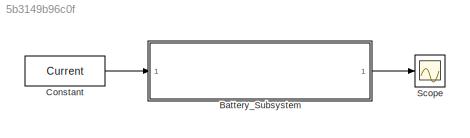
MODEL slx_5b3149b96c0f
KIND model
CONFIG AbsTol = auto
CONFIG EnableMultiTasking = off
CONFIG FixedStep = auto
CONFIG InitFcn = Current =2; %A\nInternal_Resistance =95*10^-3; %ohm\ncapacity =19.5 ; %Ah\nSOC_initial = 100;\nPolarization_Resistance = 95*10^-3;\nPolarization_Capacitance = 1*10^-7;\n
CONFIG MaxStep = 0.01
CONFIG MinStep = auto
CONFIG RelTol = 1e-3
CONFIG SampleTimeConstraint = Unconstrained
CONFIG Solver = VariableStepAuto
CONFIG SolverName = VariableStepAuto
CONFIG StartTime = 0.0
CONFIG StopTime = 54000
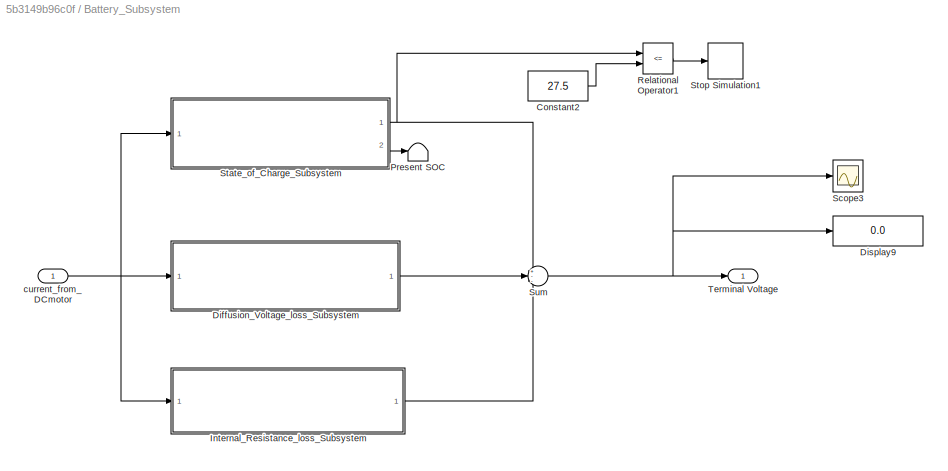
BLOCK [SubSystem] Battery_Subsystem
  Ports = [1, 1]
  RequestExecContextInheritance = off
BLOCK [Constant] Battery_Subsystem/Constant2
  Value = 27.5
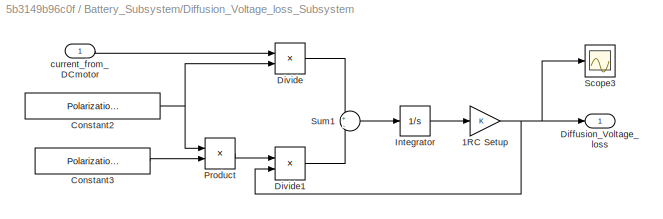
BLOCK [SubSystem] Battery_Subsystem/Diffusion_Voltage_loss_Subsystem
  Ports = [1, 1]
  RequestExecContextInheritance = off
BLOCK [Gain] Battery_Subsystem/Diffusion_Voltage_loss_Subsystem/1RC Setup
  OutDataTypeStr = Inherit: Inherit via internal rule
  ParamDataTypeStr = Inherit: Inherit via internal rule
  SaturateOnIntegerOverflow = off
BLOCK [Constant] Battery_Subsystem/Diffusion_Voltage_loss_Subsystem/Constant2
  SampleTime = -1
  Value = Polarization_Capacitance
BLOCK [Constant] Battery_Subsystem/Diffusion_Voltage_loss_Subsystem/Constant3
  SampleTime = -1
  Value = Polarization_Resistance
BLOCK [Outport] Battery_Subsystem/Diffusion_Voltage_loss_Subsystem/Diffusion_Voltage_loss
  IconDisplay = Port number
  VectorParamsAs1DForOutWhenUnconnected = off
BLOCK [Product] Battery_Subsystem/Diffusion_Voltage_loss_Subsystem/Divide
  InputSameDT = off
  Inputs = */
  OutDataTypeStr = Inherit: Inherit via internal rule
  Ports = [2, 1]
  RndMeth = Floor
  SaturateOnIntegerOverflow = off
BLOCK [Product] Battery_Subsystem/Diffusion_Voltage_loss_Subsystem/Divide1
  InputSameDT = off
  Inputs = /*
  OutDataTypeStr = Inherit: Inherit via internal rule
  Ports = [2, 1]
  RndMeth = Floor
  SaturateOnIntegerOverflow = off
BLOCK [Integrator] Battery_Subsystem/Diffusion_Voltage_loss_Subsystem/Integrator
  Ports = [1, 1]
BLOCK [Product] Battery_Subsystem/Diffusion_Voltage_loss_Subsystem/Product
  InputSameDT = off
  OutDataTypeStr = Inherit: Inherit via internal rule
  Ports = [2, 1]
  RndMeth = Floor
  SaturateOnIntegerOverflow = off
BLOCK [Scope] Battery_Subsystem/Diffusion_Voltage_loss_Subsystem/Scope3
  Floating = off
  NumInputPorts = 1
  Ports = [1]
  ScopeSpecificationString = Simulink.scopes.TimeScopeBlockCfg('CurrentConfiguration', extmgr.ConfigurationSet(extmgr.Configuration('Core','General UI',true),extmgr.Configuration('Core','Source UI',true),extmgr.Configuration('Sources','WiredSimulink',true,'DataLoggingVariableName','ScopeData4'),extmgr.Configuration('Visuals','Time Domain',true,'SerializedDisplays',{struct('MinYLimReal','-0.02375','MaxYLimReal','0.21376','YLab...<+1480ch>
BLOCK [Sum] Battery_Subsystem/Diffusion_Voltage_loss_Subsystem/Sum1
  IconShape = round
  InputSameDT = off
  Inputs = +|-
  OutDataTypeStr = Inherit: Inherit via internal rule
  Ports = [2, 1]
  SaturateOnIntegerOverflow = off
BLOCK [Inport] Battery_Subsystem/Diffusion_Voltage_loss_Subsystem/current_from_DCmotor
  IconDisplay = Port number
BLOCK [Display] Battery_Subsystem/Display9
  Decimation = 1
  Ports = [1]
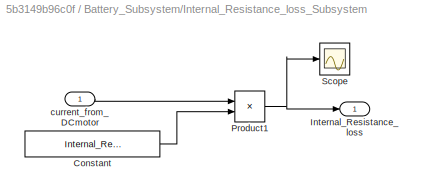
BLOCK [SubSystem] Battery_Subsystem/Internal_Resistance_loss_Subsystem
  Ports = [1, 1]
  RequestExecContextInheritance = off
BLOCK [Constant] Battery_Subsystem/Internal_Resistance_loss_Subsystem/Constant
  SampleTime = -1
  Value = Internal_Resistance
BLOCK [Outport] Battery_Subsystem/Internal_Resistance_loss_Subsystem/Internal_Resistance_loss
  IconDisplay = Port number
  VectorParamsAs1DForOutWhenUnconnected = off
BLOCK [Product] Battery_Subsystem/Internal_Resistance_loss_Subsystem/Product1
  InputSameDT = off
  OutDataTypeStr = Inherit: Inherit via internal rule
  Ports = [2, 1]
  RndMeth = Floor
  SaturateOnIntegerOverflow = off
BLOCK [Scope] Battery_Subsystem/Internal_Resistance_loss_Subsystem/Scope
  Floating = off
  NumInputPorts = 1
  Ports = [1]
  ScopeSpecificationString = Simulink.scopes.TimeScopeBlockCfg('CurrentConfiguration', extmgr.ConfigurationSet(extmgr.Configuration('Core','General UI',true),extmgr.Configuration('Core','Source UI',true),extmgr.Configuration('Sources','WiredSimulink',true,'DataLoggingVariableName','ScopeData2'),extmgr.Configuration('Visuals','Time Domain',true,'SerializedDisplays',{struct('MinYLimReal','0.09','MaxYLimReal','0.29','YLabelReal'...<+1414ch>
BLOCK [Inport] Battery_Subsystem/Internal_Resistance_loss_Subsystem/current_from_DCmotor
  IconDisplay = Port number
BLOCK [Terminator] Battery_Subsystem/Present SOC
BLOCK [RelationalOperator] Battery_Subsystem/Relational Operator1
  InputSameDT = off
  Operator = <=
  OutDataTypeStr = boolean
  Ports = [2, 1]
  RndMeth = Simplest
BLOCK [Scope] Battery_Subsystem/Scope3
  Floating = off
  NumInputPorts = 1
  Ports = [1]
  ScopeSpecificationString = Simulink.scopes.TimeScopeBlockCfg('CurrentConfiguration', extmgr.ConfigurationSet(extmgr.Configuration('Core','General UI',true),extmgr.Configuration('Core','Source UI',true),extmgr.Configuration('Sources','WiredSimulink',true,'DataLoggingVariableName','ScopeData6'),extmgr.Configuration('Visuals','Time Domain',true,'SerializedDisplays',{struct('MinYLimReal','25.37125','MaxYLimReal','42.85875','YLa...<+1503ch>
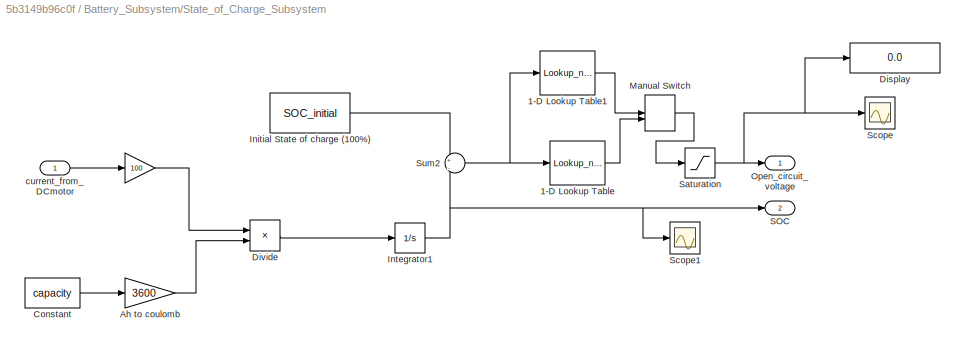
BLOCK [SubSystem] Battery_Subsystem/State_of_Charge_Subsystem 
  Ports = [1, 2]
  RequestExecContextInheritance = off
BLOCK [Gain] Battery_Subsystem/State_of_Charge_Subsystem / 
  Gain = 100
  OutDataTypeStr = Inherit: Inherit via internal rule
  ParamDataTypeStr = Inherit: Inherit via internal rule
  SaturateOnIntegerOverflow = off
BLOCK [Lookup_n-D] Battery_Subsystem/State_of_Charge_Subsystem /1-D Lookup Table
  BreakpointsForDimension1 = [10 12 15 20 30 45 60 75 85 95 100]
  InternalRulePriority = Speed
  NumberOfTableDimensions = 1
  Ports = [1, 1]
  RndMeth = Simplest
  Table = [2.75\n2.964\n3.233\n3.417\n3.65\n3.7\n3.789\n3.9269\n4.017\n4.147\n4.2\n]
BLOCK [Lookup_n-D] Battery_Subsystem/State_of_Charge_Subsystem /1-D Lookup Table1
  BreakpointsForDimension1 = [-0.02\n0.08\n0.18\n0.28\n0.38\n0.48\n0.58\n0.68\n0.78\n0.88\n0.98\n1.08\n1.18\n1.28\n1.38\n1.48\n1.58\n1.68\n1.78\n1.88\n1.98\n2.08\n2.18\n2.28\n2.38\n2.48\n2.58\n2.68\n2.78\n2.88\n2.98\n3.08\n3.18\n3.28\n3.38\n3.48\n3.58\n3.68\n3.78\n3.88\n3.98\n4.08\n4.18\n4.28\n4.38\n4.48\n4.58\n4.68\n4.78\n4.88\n4.98\n5.08\n5.18\n5.28\n5.38\n5.48\n5.58\n5.68\n5.78\n5.88\n5.98\n6.08\n6.19\n6.29\n6.39\n6.49\n6.59\n6.69\n6.79\n6.89\n6.99\n7.09\n7.19\n7.29\n7.39\n7.49\n7.59\n7.69\n7.79\n7.8...<+5502ch>
  InternalRulePriority = Speed
  NumberOfTableDimensions = 1
  Ports = [1, 1]
  RndMeth = Simplest
  Table = [26.9\n27.2\n27.4\n27.6\n27.9\n28.1\n28.3\n28.5\n28.7\n28.9\n29.1\n29.3\n29.5\n29.6\n29.8\n30\n30.1\n30.3\n30.4\n30.6\n30.7\n30.8\n31\n31.1\n31.2\n31.3\n31.4\n31.5\n31.6\n31.7\n31.8\n31.9\n32\n32.1\n32.2\n32.2\n32.3\n32.4\n32.4\n32.5\n32.6\n32.6\n32.7\n32.7\n32.8\n32.8\n32.9\n32.9\n32.9\n33\n33\n33.1\n33.1\n33.1\n33.1\n33.2\n33.2\n33.2\n33.2\n33.3\n33.3\n33.3\n33.3\n33.3\n33.3\n33.4\n33.4\n33.4\n33.4\n33.4\n33.4\n33.4\n33.5\n33.5\n33.5\n33.5\n33.5\n33.5\n33.5\n33.6\n33.6\n33.6...<+4398ch>
BLOCK [Gain] Battery_Subsystem/State_of_Charge_Subsystem /Ah to coulomb
  Gain = 3600
  OutDataTypeStr = Inherit: Inherit via internal rule
  ParamDataTypeStr = Inherit: Inherit via internal rule
  SaturateOnIntegerOverflow = off
BLOCK [Constant] Battery_Subsystem/State_of_Charge_Subsystem /Constant
  SampleTime = -1
  Value = capacity
BLOCK [Display] Battery_Subsystem/State_of_Charge_Subsystem /Display
  Decimation = 1
  Ports = [1]
BLOCK [Product] Battery_Subsystem/State_of_Charge_Subsystem /Divide
  InputSameDT = off
  Inputs = */
  OutDataTypeStr = Inherit: Inherit via internal rule
  Ports = [2, 1]
  RndMeth = Floor
  SaturateOnIntegerOverflow = off
BLOCK [Constant] Battery_Subsystem/State_of_Charge_Subsystem /Initial State of charge (100%)
  SampleTime = -1
  Value = SOC_initial
BLOCK [Integrator] Battery_Subsystem/State_of_Charge_Subsystem /Integrator1
  LowerSaturationLimit = 0
  Ports = [1, 1]
  UpperSaturationLimit = 100
BLOCK [ManualSwitch] Battery_Subsystem/State_of_Charge_Subsystem /Manual Switch
BLOCK [Outport] Battery_Subsystem/State_of_Charge_Subsystem /Open_circuit_voltage
  IconDisplay = Port number
  VectorParamsAs1DForOutWhenUnconnected = off
BLOCK [Outport] Battery_Subsystem/State_of_Charge_Subsystem /SOC
  IconDisplay = Port number
  Port = 2
  VectorParamsAs1DForOutWhenUnconnected = off
BLOCK [Saturate] Battery_Subsystem/State_of_Charge_Subsystem /Saturation
  InputPortMap = u0
  LowerLimit = 0
  Ports = [1, 1]
  UpperLimit = inf
BLOCK [Scope] Battery_Subsystem/State_of_Charge_Subsystem /Scope
  Floating = off
  NumInputPorts = 1
  Ports = [1]
  ScopeSpecificationString = Simulink.scopes.TimeScopeBlockCfg('CurrentConfiguration', extmgr.ConfigurationSet(extmgr.Configuration('Core','General UI',true),extmgr.Configuration('Core','Source UI',true),extmgr.Configuration('Sources','WiredSimulink',true,'DataLoggingVariableName','ScopeData1'),extmgr.Configuration('Visuals','Time Domain',true,'SerializedDisplays',{struct('MinYLimReal','34.4375','MaxYLimReal','42.0625','YLabe...<+1507ch>
BLOCK [Scope] Battery_Subsystem/State_of_Charge_Subsystem /Scope1
  Floating = off
  NumInputPorts = 1
  Ports = [1]
  ScopeSpecificationString = Simulink.scopes.TimeScopeBlockCfg('CurrentConfiguration', extmgr.ConfigurationSet(extmgr.Configuration('Core','General UI',true),extmgr.Configuration('Core','Source UI',true),extmgr.Configuration('Sources','WiredSimulink',true,'DataLoggingVariableName','ScopeData1'),extmgr.Configuration('Visuals','Time Domain',true,'SerializedDisplays',{struct('MinYLimReal','-12.47125','MaxYLimReal','112.24125','Y...<+1501ch>
BLOCK [Sum] Battery_Subsystem/State_of_Charge_Subsystem /Sum2
  IconShape = round
  InputSameDT = off
  Inputs = +|-
  OutDataTypeStr = Inherit: Inherit via internal rule
  Ports = [2, 1]
  SaturateOnIntegerOverflow = off
BLOCK [Inport] Battery_Subsystem/State_of_Charge_Subsystem /current_from_DCmotor
  IconDisplay = Port number
BLOCK [Stop] Battery_Subsystem/Stop Simulation1
BLOCK [Sum] Battery_Subsystem/Sum
  IconShape = round
  InputSameDT = off
  Inputs = +--
  OutDataTypeStr = Inherit: Inherit via internal rule
  Ports = [3, 1]
  SaturateOnIntegerOverflow = off
BLOCK [Outport] Battery_Subsystem/Terminal Voltage
  IconDisplay = Port number
  VectorParamsAs1DForOutWhenUnconnected = off
BLOCK [Inport] Battery_Subsystem/current_from_DCmotor
  IconDisplay = Port number
BLOCK [Constant] Constant
  Value = Current
BLOCK [Scope] Scope
  Floating = off
  NumInputPorts = 1
  Ports = [1]
  ScopeSpecificationString = Simulink.scopes.TimeScopeBlockCfg('CurrentConfiguration', extmgr.ConfigurationSet(extmgr.Configuration('Core','General UI',true),extmgr.Configuration('Core','Source UI',true),extmgr.Configuration('Sources','WiredSimulink',true,'DataLoggingVariableName','ScopeData1'),extmgr.Configuration('Visuals','Time Domain',true,'SerializedDisplays',{struct('MinYLimReal','21.7375','MaxYLimReal','41.3625','YLabe...<+1470ch>
LINE Battery_Subsystem/Constant2:1 -> Battery_Subsystem/Relational Operator1:2
NET Battery_Subsystem/Diffusion_Voltage_loss_Subsystem/1RC Setup:1 -> Battery_Subsystem/Diffusion_Voltage_loss_Subsystem/Diffusion_Voltage_loss:1, Battery_Subsystem/Diffusion_Voltage_loss_Subsystem/Divide1:2, Battery_Subsystem/Diffusion_Voltage_loss_Subsystem/Scope3:1
NET Battery_Subsystem/Diffusion_Voltage_loss_Subsystem/Constant2:1 -> Battery_Subsystem/Diffusion_Voltage_loss_Subsystem/Divide:2, Battery_Subsystem/Diffusion_Voltage_loss_Subsystem/Product:1
LINE Battery_Subsystem/Diffusion_Voltage_loss_Subsystem/Constant3:1 -> Battery_Subsystem/Diffusion_Voltage_loss_Subsystem/Product:2
LINE Battery_Subsystem/Diffusion_Voltage_loss_Subsystem/Divide1:1 -> Battery_Subsystem/Diffusion_Voltage_loss_Subsystem/Sum1:2
LINE Battery_Subsystem/Diffusion_Voltage_loss_Subsystem/Divide:1 -> Battery_Subsystem/Diffusion_Voltage_loss_Subsystem/Sum1:1
LINE Battery_Subsystem/Diffusion_Voltage_loss_Subsystem/Integrator:1 -> Battery_Subsystem/Diffusion_Voltage_loss_Subsystem/1RC Setup:1
LINE Battery_Subsystem/Diffusion_Voltage_loss_Subsystem/Product:1 -> Battery_Subsystem/Diffusion_Voltage_loss_Subsystem/Divide1:1
LINE Battery_Subsystem/Diffusion_Voltage_loss_Subsystem/Sum1:1 -> Battery_Subsystem/Diffusion_Voltage_loss_Subsystem/Integrator:1
LINE Battery_Subsystem/Diffusion_Voltage_loss_Subsystem/current_from_DCmotor:1 -> Battery_Subsystem/Diffusion_Voltage_loss_Subsystem/Divide:1
LINE Battery_Subsystem/Diffusion_Voltage_loss_Subsystem:1 -> Battery_Subsystem/Sum:2
LINE Battery_Subsystem/Internal_Resistance_loss_Subsystem/Constant:1 -> Battery_Subsystem/Internal_Resistance_loss_Subsystem/Product1:2
NET Battery_Subsystem/Internal_Resistance_loss_Subsystem/Product1:1 -> Battery_Subsystem/Internal_Resistance_loss_Subsystem/Internal_Resistance_loss:1, Battery_Subsystem/Internal_Resistance_loss_Subsystem/Scope:1
LINE Battery_Subsystem/Internal_Resistance_loss_Subsystem/current_from_DCmotor:1 -> Battery_Subsystem/Internal_Resistance_loss_Subsystem/Product1:1
LINE Battery_Subsystem/Internal_Resistance_loss_Subsystem:1 -> Battery_Subsystem/Sum:3
LINE Battery_Subsystem/Relational Operator1:1 -> Battery_Subsystem/Stop Simulation1:1
LINE Battery_Subsystem/State_of_Charge_Subsystem / :1 -> Battery_Subsystem/State_of_Charge_Subsystem /Divide:1
LINE Battery_Subsystem/State_of_Charge_Subsystem /1-D Lookup Table1:1 -> Battery_Subsystem/State_of_Charge_Subsystem /Manual Switch:1
LINE Battery_Subsystem/State_of_Charge_Subsystem /1-D Lookup Table:1 -> Battery_Subsystem/State_of_Charge_Subsystem /Manual Switch:2
LINE Battery_Subsystem/State_of_Charge_Subsystem /Ah to coulomb:1 -> Battery_Subsystem/State_of_Charge_Subsystem /Divide:2
LINE Battery_Subsystem/State_of_Charge_Subsystem /Constant:1 -> Battery_Subsystem/State_of_Charge_Subsystem /Ah to coulomb:1
LINE Battery_Subsystem/State_of_Charge_Subsystem /Divide:1 -> Battery_Subsystem/State_of_Charge_Subsystem /Integrator1:1
LINE Battery_Subsystem/State_of_Charge_Subsystem /Initial State of charge (100%):1 -> Battery_Subsystem/State_of_Charge_Subsystem /Sum2:1
NET Battery_Subsystem/State_of_Charge_Subsystem /Integrator1:1 -> Battery_Subsystem/State_of_Charge_Subsystem /SOC:1, Battery_Subsystem/State_of_Charge_Subsystem /Scope1:1, Battery_Subsystem/State_of_Charge_Subsystem /Sum2:2
LINE Battery_Subsystem/State_of_Charge_Subsystem /Manual Switch:1 -> Battery_Subsystem/State_of_Charge_Subsystem /Saturation:1
NET Battery_Subsystem/State_of_Charge_Subsystem /Saturation:1 -> Battery_Subsystem/State_of_Charge_Subsystem /Display:1, Battery_Subsystem/State_of_Charge_Subsystem /Open_circuit_voltage:1, Battery_Subsystem/State_of_Charge_Subsystem /Scope:1
NET Battery_Subsystem/State_of_Charge_Subsystem /Sum2:1 -> Battery_Subsystem/State_of_Charge_Subsystem /1-D Lookup Table1:1, Battery_Subsystem/State_of_Charge_Subsystem /1-D Lookup Table:1
LINE Battery_Subsystem/State_of_Charge_Subsystem /current_from_DCmotor:1 -> Battery_Subsystem/State_of_Charge_Subsystem / :1
NET Battery_Subsystem/State_of_Charge_Subsystem :1 -> Battery_Subsystem/Relational Operator1:1, Battery_Subsystem/Sum:1
LINE Battery_Subsystem/State_of_Charge_Subsystem :2 -> Battery_Subsystem/Present SOC:1
NET Battery_Subsystem/Sum:1 -> Battery_Subsystem/Display9:1, Battery_Subsystem/Scope3:1, Battery_Subsystem/Terminal Voltage:1
NET Battery_Subsystem/current_from_DCmotor:1 -> Battery_Subsystem/Diffusion_Voltage_loss_Subsystem:1, Battery_Subsystem/Internal_Resistance_loss_Subsystem:1, Battery_Subsystem/State_of_Charge_Subsystem :1
LINE Battery_Subsystem:1 -> Scope:1
LINE Constant:1 -> Battery_Subsystem:1
note: NET lines group one-source signal fan-out (src -> all destinations, sorted); 1:1 wires keep LINE
